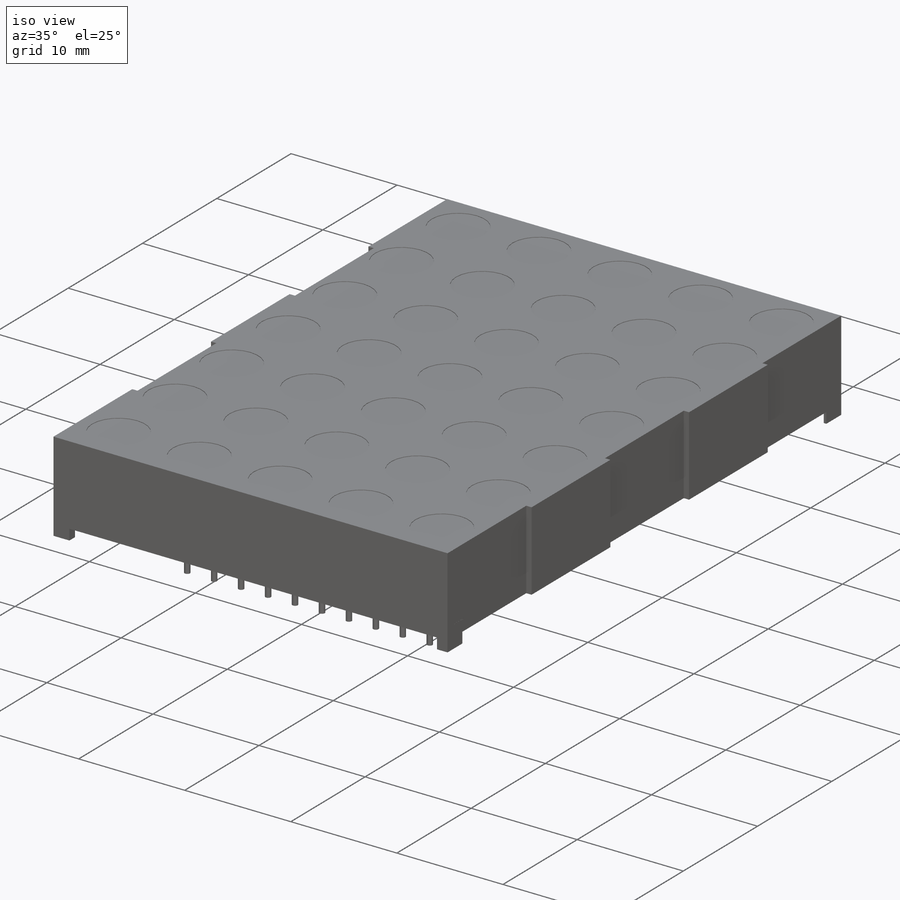
[diagram: iso view]
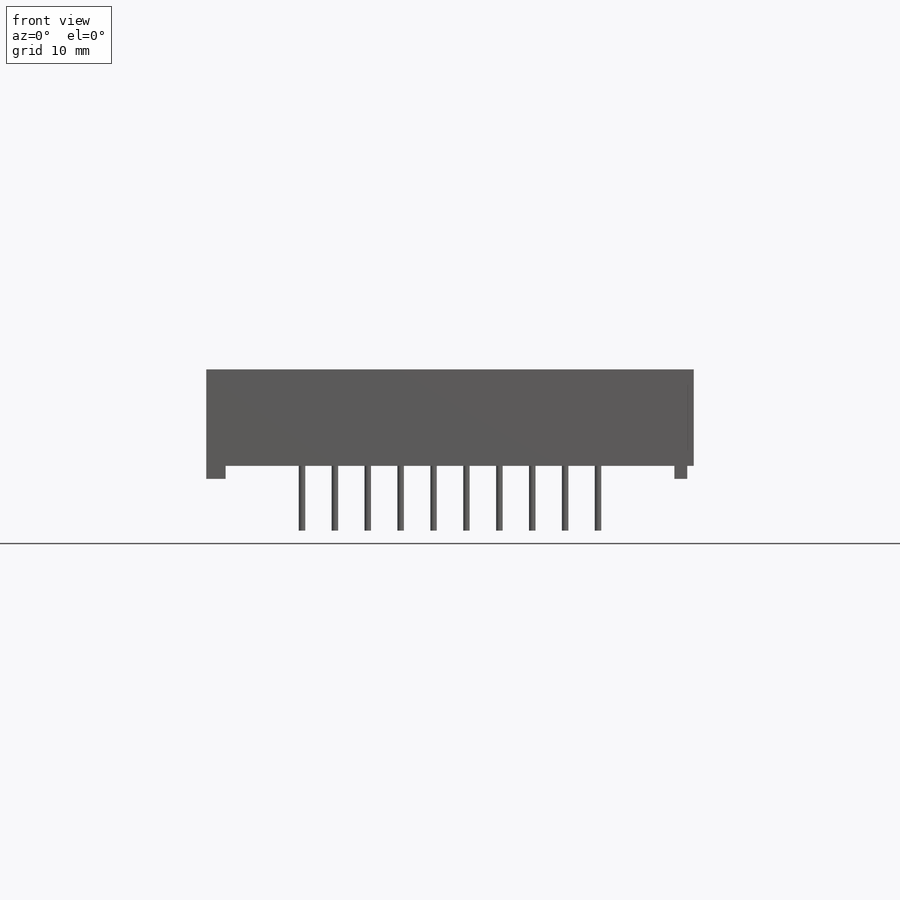
[diagram: front view]
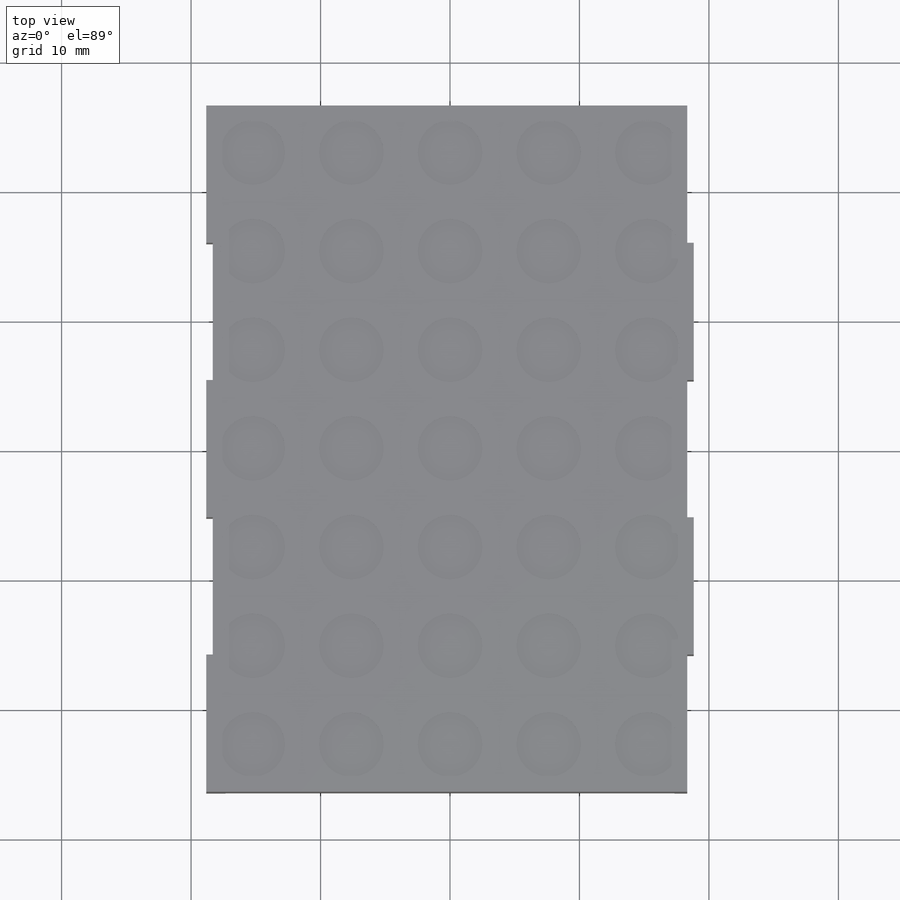
[diagram: top view]
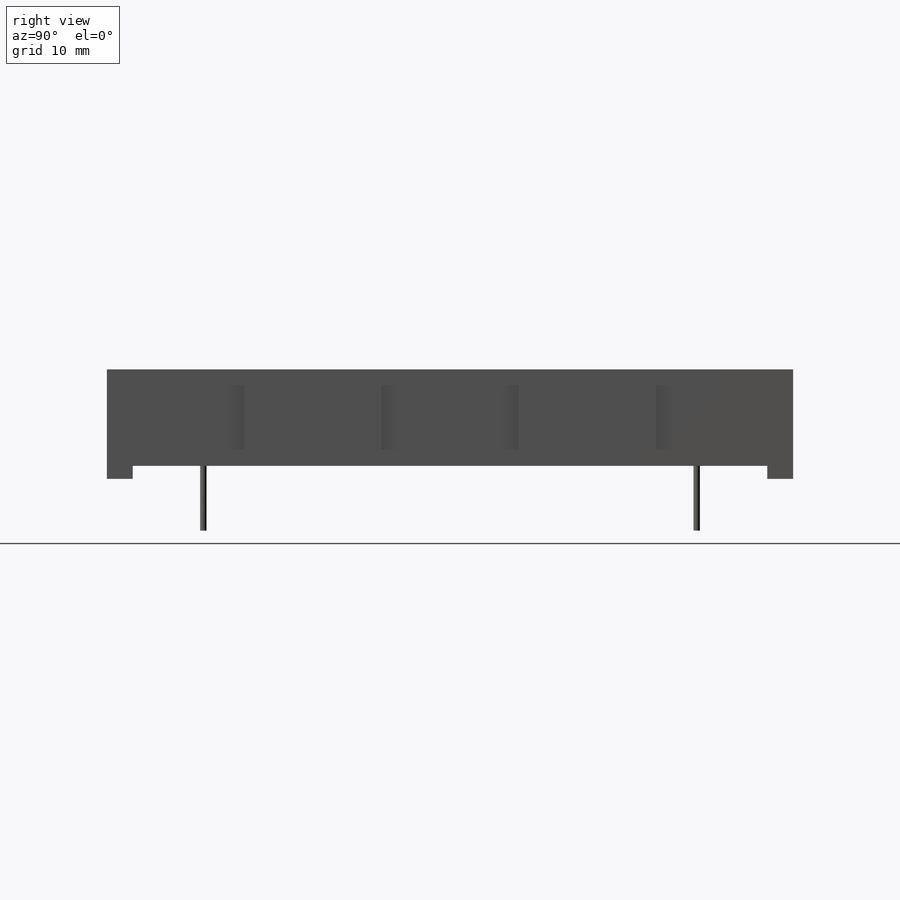
[diagram: right view]
SOLIDWORKS PART (.sldprt)
format: sldprt  version: not decoded by parser v0  size: 974,336 bytes
history: native  units: mm
features: sketch x8, cut_extrude x5, extrude x3, material x1 (+11 scaffold rows collapsed)
feature tree (28):
  scaffold x11  (default folders/planes/origin — collapsed)
  material  "Material <not specified>"
  sketch  "Sketch1"  dims[D1=53.0mm D2=8.45mm D3=1.0mm D4=2.0mm D5=2.0mm]
  extrude  "Extrude1"  Depth=37.65mm
  sketch  "Sketch2"  dims[c1.D1=2.0mm c1.D2=5.0mm c2.D1=7.62mm c2.D3=7.62mm c2.D4=7.62mm c2.D5=7.62mm c2.D6=7.62mm c2.D7=7.62mm c2.D8=7.62mm c2.D9=7.62mm c2.D10=7.62mm c2.D11=7.62mm c2.D12=0.5mm]
  sketch  "Sketch3"  dims[D1=1.0mm D2=1.5mm D3=1.5mm]
  cut_extrude  "Cut-Extrude1"  [1 undecoded]
  cut_extrude  "Cut-Extrude2"  Depth=0.05mm
  sketch  "Sketch4"  dims[c1.D9=0.5mm c1.D1=2.54mm c1.D2=2.54mm c1.D3=2.54mm c1.D4=0.5mm c1.D5=0.5mm c1.D6=2.54mm c1.D7=2.54mm c1.D8=7.62mm c2.D1=2.54mm c2.D2=2.54mm c2.D3=2.54mm c2.D4=2.54mm c2.D5=2.54mm c2.D6=7.62mm c2.D7=0.75mm c2.D8=0.75mm c3.D1=2.54mm c3.D2=2.54mm c3.D3=2.54mm c3.D4=2.54mm c3.D5=2.54mm c3.D6=2.54mm c3.D10=3.83mm c3.D11=38.1mm c4.D5=2.54mm c4.D6=7.45mm c4.D10=7.45mm c4.D12=7.395mm c4.D13=7.395mm]
  extrude  "Extrude2"  [1 undecoded]
  extrude  "Extrude3"  [1 undecoded]
  sketch  "Sketch4<3>"  dims[D1=4.0mm]
  cut_extrude  "Cut-Extrude3"  [1 undecoded]
  sketch  "Sketch4<4>"
  cut_extrude  "Cut-Extrude5"  [1 undecoded]
  sketch  "Sketch2<4>"
  sketch  "Sketch5"  dims[D1=3.0mm]
  cut_extrude  "Cut-Extrude6"  Depth=0.01mm
decode coverage: 9 of 16 modeling features carry decoded parameters
note: 5 parameter values undecoded
summary: no parameter record found for 5 features
note: suppression state not decoded; provenance and decode notes live in map.json
